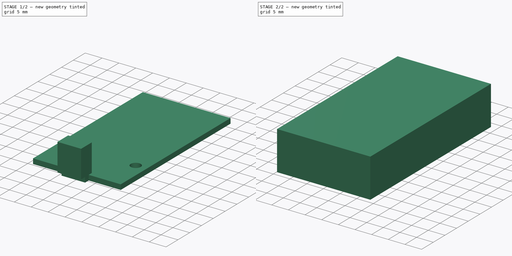
[diagram: build sequence overview — one tinted view per stage of 2, left to right]
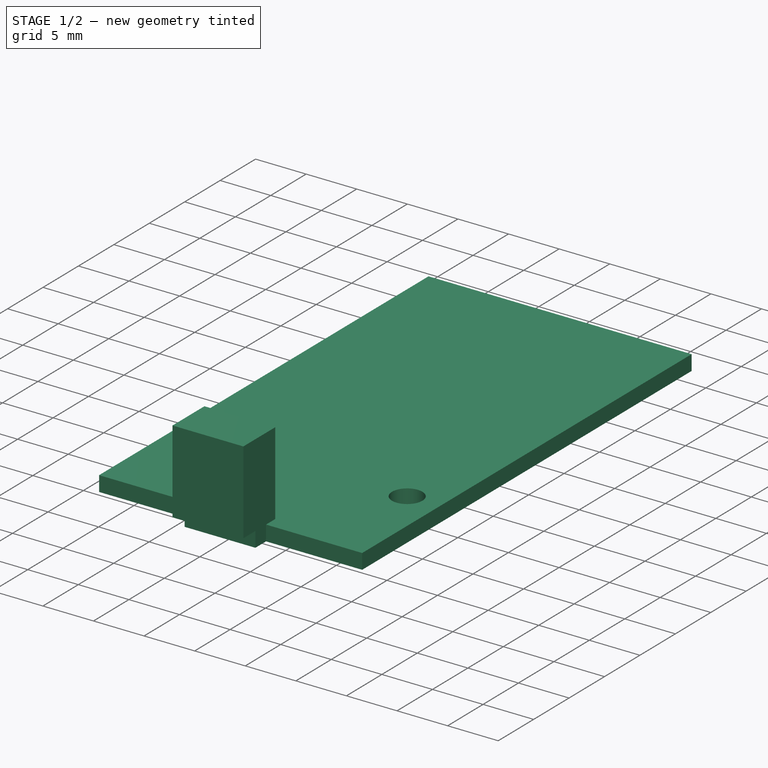
[diagram: stage 1 of 2 — iso view after this stage's code; geometry added in this stage tinted green]
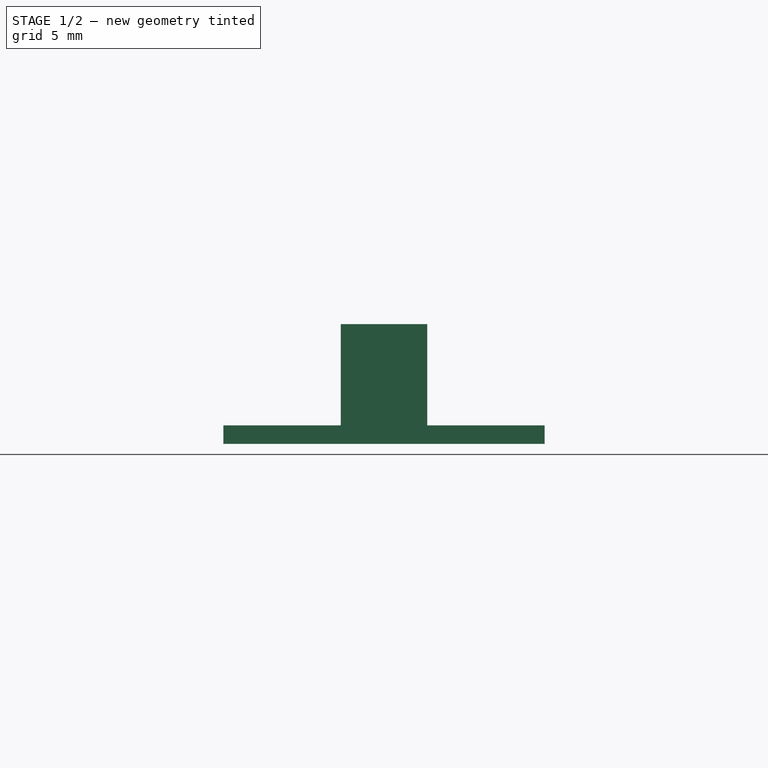
[diagram: stage 1 of 2 — front view after this stage's code; geometry added in this stage tinted green]
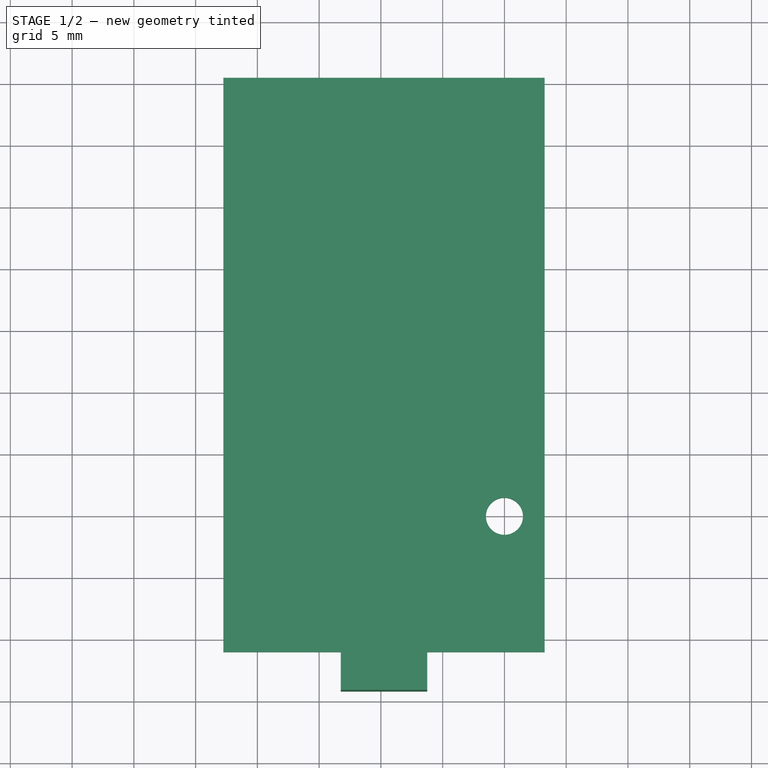
[diagram: stage 1 of 2 — top view after this stage's code; geometry added in this stage tinted green]
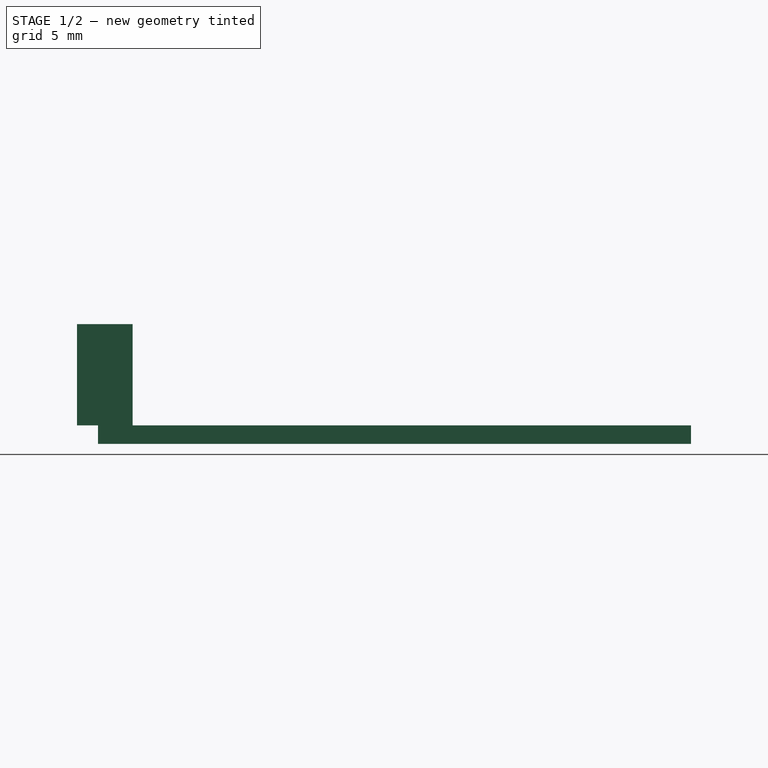
[diagram: stage 1 of 2 — right view after this stage's code; geometry added in this stage tinted green]
FCSTD DOCUMENT  (FreeCAD 0.18R)
Label: bottom-v1-0
License: CreativeCommons Attribution-NonCommercial-ShareAlike
LicenseURL: http://creativecommons.org/licenses/by-nc-sa/4.0/
objects: Path::FeaturePython×3, Sketcher::SketchObject×2, PartDesign::Pad×2, Part::FeaturePython×2, PartDesign::Plane×1, PartDesign::Body×1, App::FeaturePython×1, App::DocumentObjectGroup×1, Part::Feature×1, Path::FeatureCompoundPython×1
note: 12 computed .brp shape members not serialized (recipe doc carries the construction recipe); baked Part::Feature solids carry a one-line shape summary decoded from their .brp

FEATURE [Sketcher::SketchObject] Sketch
  MapMode = 5
  Support = -> [XY_Plane]
  sketch-geometry (9):
    g0: LineSegment StartX=-22.75 StartY=35.5 StartZ=0 EndX=3.25 EndY=35.5 EndZ=0
    g1: LineSegment StartX=3.25 StartY=35.5 StartZ=0 EndX=3.25 EndY=-11 EndZ=0
    g2: LineSegment StartX=3.25 StartY=-11 StartZ=0 EndX=-6.25 EndY=-11 EndZ=0
    g3: LineSegment StartX=-6.25 StartY=-11 StartZ=0 EndX=-6.25 EndY=-12.5 EndZ=0
    g4: LineSegment StartX=-6.25 StartY=-12.5 StartZ=0 EndX=-13.25 EndY=-12.5 EndZ=0
    g5: LineSegment StartX=-13.25 StartY=-12.5 StartZ=0 EndX=-13.25 EndY=-11 EndZ=0
    g6: LineSegment StartX=-13.25 StartY=-11 StartZ=0 EndX=-22.75 EndY=-11 EndZ=0
    g7: LineSegment StartX=-22.75 StartY=-11 StartZ=0 EndX=-22.75 EndY=35.5 EndZ=0
    g8: Circle CenterX=0 CenterY=0 CenterZ=0 NormalX=0 NormalY=0 NormalZ=1 AngleXU=0 Radius=1.5
  constraints (26):
    c: Coincident(g0,g1)
    c: Vertical(g1)
    c: Coincident(g1,g2)
    c: Horizontal(g2)
    c: Coincident(g2,g3)
    c: Vertical(g3)
    c: Coincident(g3,g4)
    c: Horizontal(g4)
    c: Coincident(g4,g5)
    c: Vertical(g5)
    c: Coincident(g5,g6)
    c: Horizontal(g6)
    c: Coincident(g6,g7)
    c: Vertical(g7)
    c: Coincident(g7,g0)
    c: DistanceY(g3,g3) = 1.5
    c: DistanceX(g0,g0) = 26
    c: DistanceY(g6,g0) = 46.5
    c: Equal(g1,g7)
    c: Equal(g2,g6)
    c: DistanceX(g4,g3) = 7
    c: Diameter(g8) = 3
    c: Coincident(g8,g-1)
    c: Horizontal(g0)
    c: Distance(g8,g1) = 3.25
    c: Distance(g8,g2) = 11
FEATURE [PartDesign::Pad] Pad
  Length = 1.5
  Length2 = 100
  Profile = -> Sketch
  Type = 0
FEATURE [PartDesign::Plane] DatumPlane
  Length = 24
  MapMode = 5
  Placement = pos=(0,0,1.5) rot=(0,0,1;0rad)
  ResizeMode = 0
  Support = -> [Pad]
  Width = 24
FEATURE [Sketcher::SketchObject] Sketch001
  ExternalGeometry = -> [Pad]
  MapMode = 5
  Placement = pos=(0,0,1.5) rot=(0,0,1;0rad)
  Support = -> [DatumPlane]
  sketch-geometry (4):
    g0: LineSegment StartX=-13.25 StartY=-9.7 StartZ=0 EndX=-6.25 EndY=-9.7 EndZ=0
    g1: LineSegment StartX=-6.25 StartY=-9.7 StartZ=0 EndX=-6.25 EndY=-14.2 EndZ=0
    g2: LineSegment StartX=-6.25 StartY=-14.2 StartZ=0 EndX=-13.25 EndY=-14.2 EndZ=0
    g3: LineSegment StartX=-13.25 StartY=-14.2 StartZ=0 EndX=-13.25 EndY=-9.7 EndZ=0
  constraints (12):
    c: Coincident(g0,g1)
    c: Coincident(g1,g2)
    c: Coincident(g2,g3)
    c: Coincident(g3,g0)
    c: Horizontal(g0)
    c: Horizontal(g2)
    c: Vertical(g1)
    c: Vertical(g3)
    c: DistanceY(g2,g0) = 4.5
    c: DistanceX(g2,g1) = 7
    c: DistanceY(g2,g-3) = 1.7
    c: DistanceX(g0,g-3) = 0
FEATURE [PartDesign::Pad] Pad001
  BaseFeature = -> Pad
  Length = 8.2
  Length2 = 100
  Profile = -> Sketch001
  Type = 0
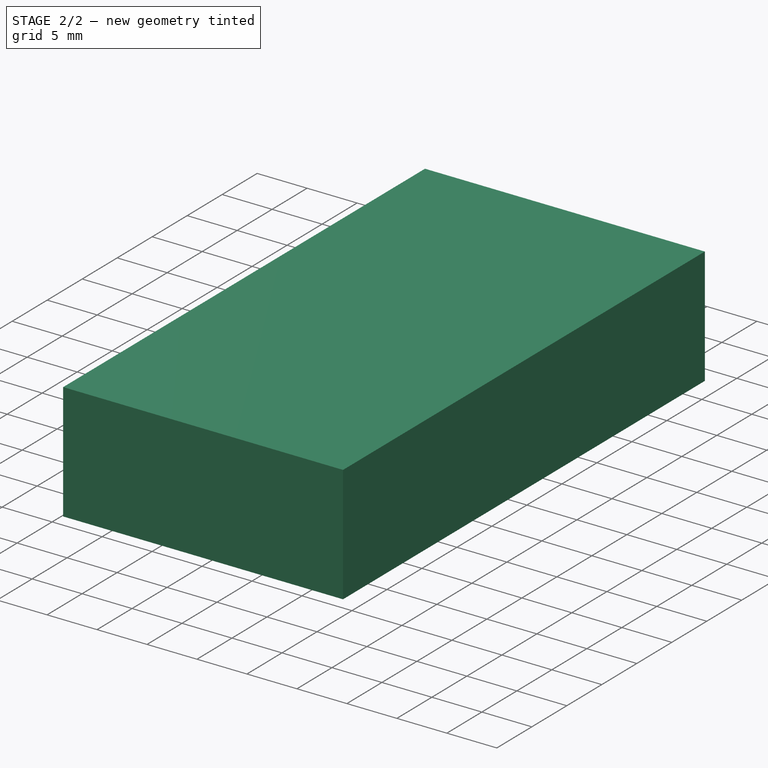
[diagram: stage 2 of 2 — iso view after this stage's code; geometry added in this stage tinted green]
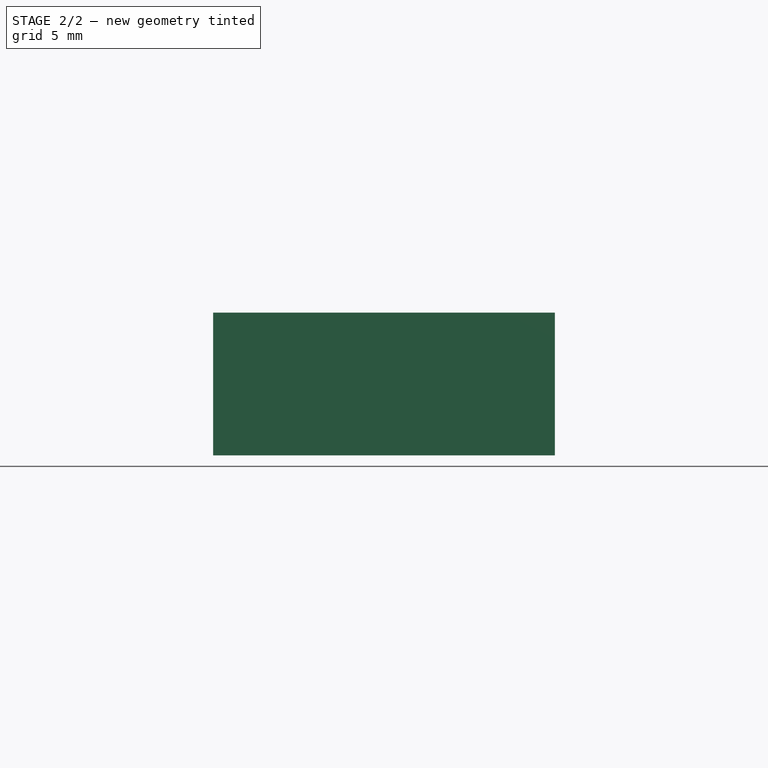
[diagram: stage 2 of 2 — front view after this stage's code; geometry added in this stage tinted green]
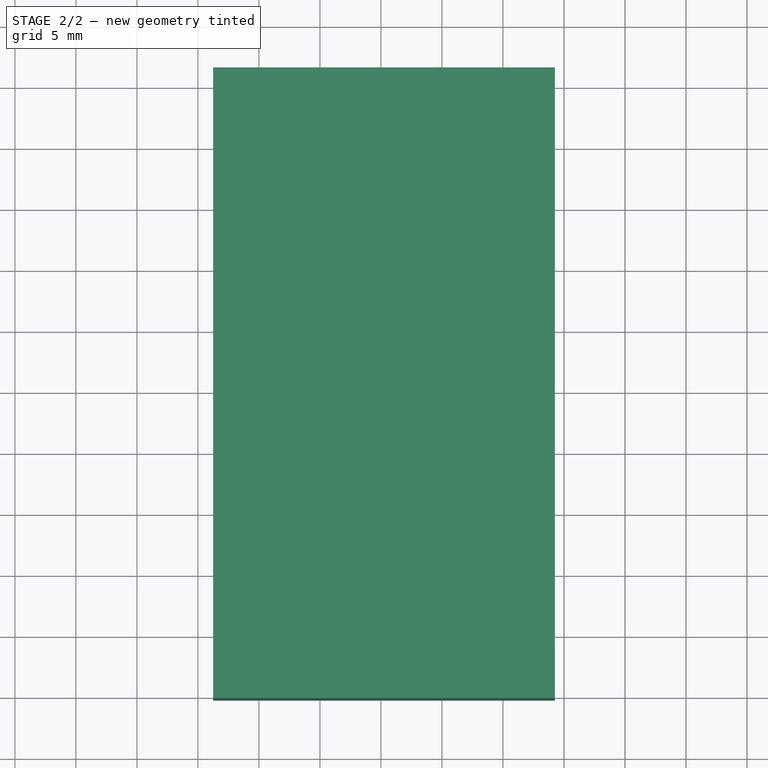
[diagram: stage 2 of 2 — top view after this stage's code; geometry added in this stage tinted green]
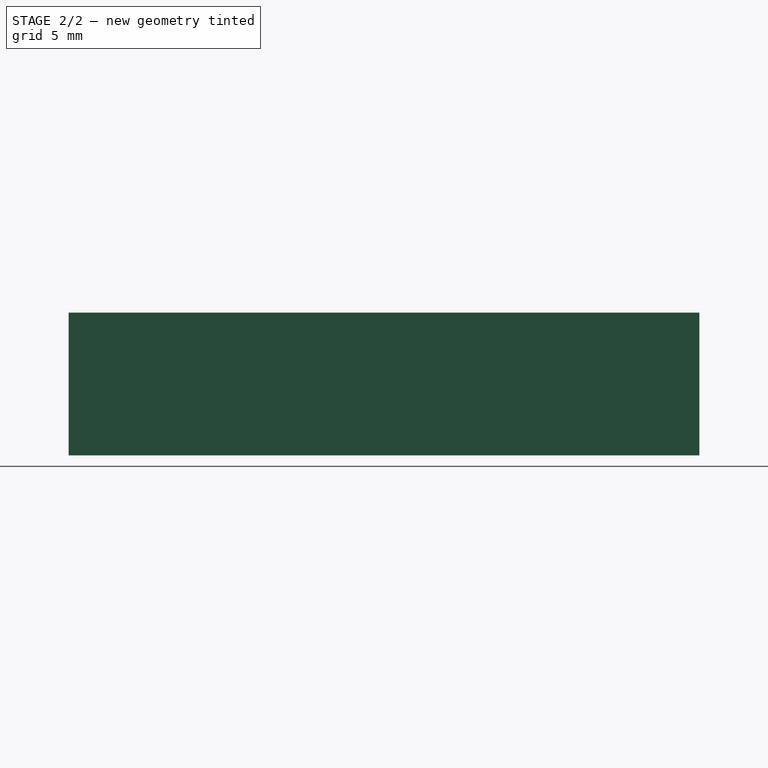
[diagram: stage 2 of 2 — right view after this stage's code; geometry added in this stage tinted green]
FEATURE [PartDesign::Body] Body
  Group = -> [Sketch,Pad,DatumPlane,Sketch001,Pad001]
  Origin = -> Origin
  Tip = -> Pad001
FEATURE [App::FeaturePython] SetupSheet  # Path/CAM operation (typed FeaturePython)
  ClearanceHeightExpression = OpStockZMax+SetupSheet.ClearanceHeightOffset
  ClearanceHeightOffset = 35
  FinalDepthExpression = OpFinalDepth
  HorizRapid = 0
  SafeHeightExpression = OpStockZMax+SetupSheet.SafeHeightOffset
  SafeHeightOffset = 35
  StartDepthExpression = OpStartDepth
  StepDownExpression = OpToolDiameter
  VertRapid = 0
  expr: ClearanceHeightOffset = 35
  expr: SafeHeightOffset = 35
FEATURE [Part::FeaturePython] Clone  label="Model-Body"  # Draft clone (typed FeaturePython)
  AttacherType = Attacher::AttachEngine3D
  Fuse = false
  Objects = -> [Body]
  PathResource = Model
  Scale = (1,1,1)
FEATURE [App::DocumentObjectGroup] Model
  Group = -> [Clone]
FEATURE [Path::FeaturePython] Default_Tool  label="Default Tool"  # Path/CAM operation (typed FeaturePython)
  HorizFeed = 1
  HorizRapid = 0
  SpindleDir = 0
  SpindleSpeed = 0
  ToolNumber = 1
  VertFeed = 1
  VertRapid = 0
  expr: HorizRapid = SetupSheet.HorizRapid
  expr: VertRapid = SetupSheet.VertRapid
FEATURE [Part::FeaturePython] Stock  # WARN: FeaturePython — macro-defined, semantics opaque (R4)
  Base = -> Model
  ExtXneg = 1
  ExtXpos = 1
  ExtYneg = 1
  ExtYpos = 1
  ExtZneg = 1
  ExtZpos = 1
  Placement = pos=(-22.75,-14.2,0) rot=(0,0,1;0rad)
  StockType = FromBase
FEATURE [Part::Feature] tool
  shape: bbox 5 x 5 x 15 mm, 3 faces (baked)
FEATURE [Path::FeaturePython] MillFace  # Path/CAM operation (typed FeaturePython)
  Active = true
  AreaParams:
    OpenMode = 0
    Angle = 45.0
    MinArcPoints = 4
    Coplanar = 0
    Tolerance = 1e-07
    CleanDistance = 0.0
    PocketExtraOffset = 0.0
    RoundPrecision = 0.0
    AngleShift = 0.0
    SubjectFill = 0
    PocketMode = 3
    PocketLastStepover = 0.0
    Simplify = False
    SectionTolerance = 1e-06
    MaxArcPoints = 100
    Offset = 0.0
    Accuracy = 0.01
    LastStepover = 0.0
    PocketStepover = 1.0
    ClipFill = 0
    ToolRadius = 1.0
    Outline = False
    ClipperScale = 10000000.0
    FromCenter = True
    Explode = False
    EndType = 0
    Shift = 0.0
    ExtraPass = 0
    Project = False
    JoinType = 0
    Thicken = False
    Stepdown = 1.0
    SectionMode = 2
    MiterLimit = 2.0
    Deflection = 0.01
    Reorient = True
    FitArcs = True
    SectionCount = -1
    SectionOffset = 0.0
    Stepover = 0.0
    Unit = 1.0
    Fill = 0
  Base = -> [Clone]
  BoundaryShape = 0
  ClearanceHeight = 45.7
  CutMode = 0
  ExtraOffset = 0
  FinalDepth = 9.7
  FinishDepth = 0
  KeepToolDown = false
  MinTravel = false
  OffsetPattern = 2
  OpFinalDepth = 9.7
  OpStartDepth = 10.7
  OpStockZMax = 10.7
  OpStockZMin = -1
  OpToolDiameter = 2
  PathParams = {'resume_height': 45.7, 'feedrate': 1.0, 'verbose': True, 'orientation': 1, 'return_end': True, 'preamble': False, 'retraction': 45.7, 'feedrate_v': 1.0}
  SafeHeight = 45.7
  StartAt = 0
  StartDepth = 10.7
  StartPoint = (0,0,0)
  StepDown = 2
  StepOver = 50
  ToolController = -> Default_Tool
  UseStartPoint = false
  ZigZagAngle = 45
  expr: ClearanceHeight = OpStockZMax + SetupSheet.ClearanceHeightOffset
  expr: SafeHeight = OpStockZMax + SetupSheet.SafeHeightOffset
  expr: StepDown = OpToolDiameter
  expr: FinalDepth = OpFinalDepth
  expr: StartDepth = OpStartDepth
FEATURE [Path::FeatureCompoundPython] Operations  # Path/CAM operation (typed FeaturePython)
  Group = -> [MillFace]
  UsePlacements = false
FEATURE [Path::FeaturePython] Job  # Path/CAM operation (typed FeaturePython)
  GeometryTolerance = 0.01
  Model = -> Model
  Operations = -> Operations
  PostProcessor = 5
  SetupSheet = -> SetupSheet
  Stock = -> Stock
  ToolController = -> [Default_Tool]
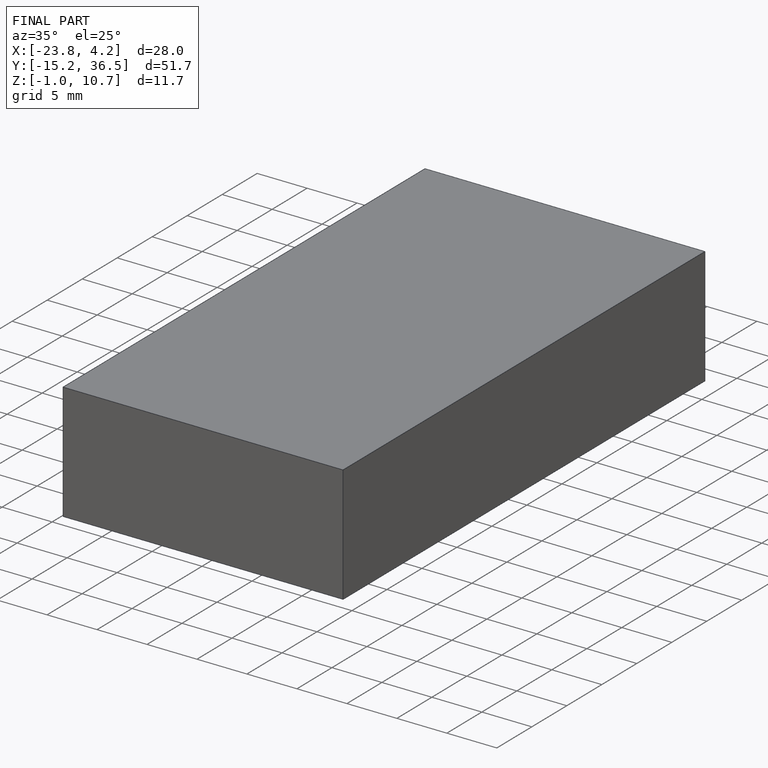
[diagram: finished part — iso view with bounding-box wireframe]
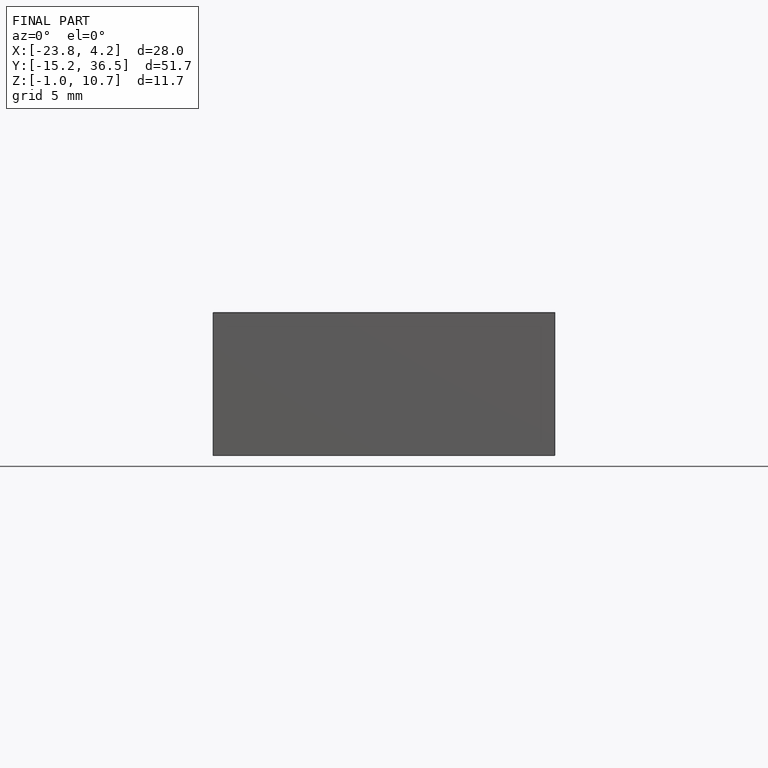
[diagram: finished part — front view with bounding-box wireframe]
